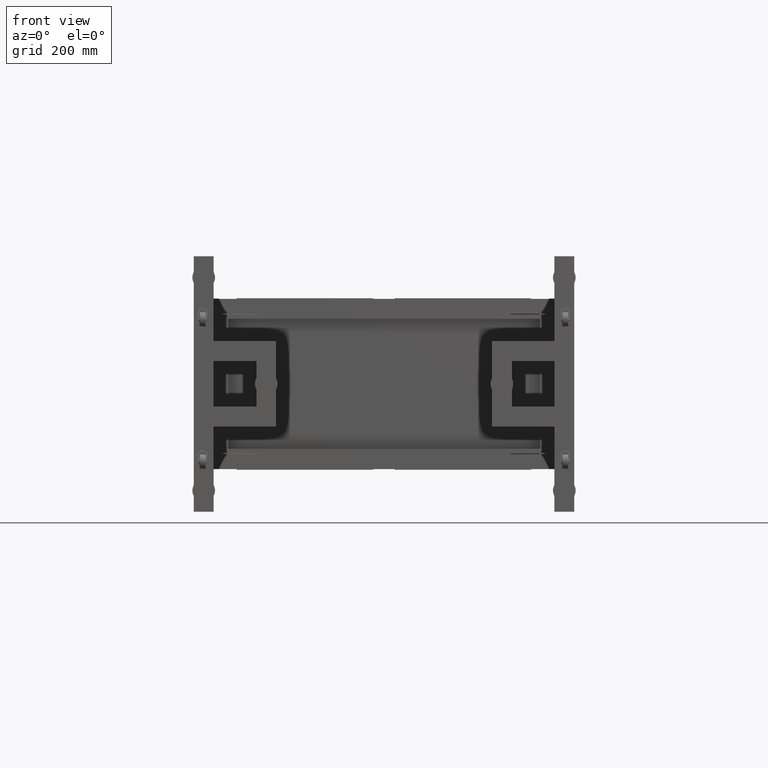
[diagram: clean part render]
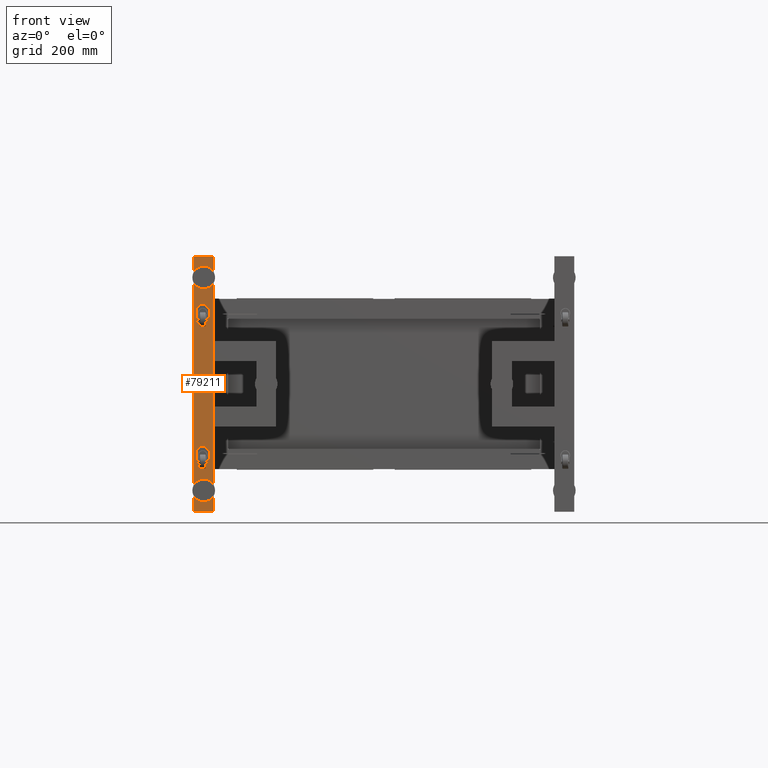
[diagram: same view with one face highlighted and labeled with its STEP entity id]
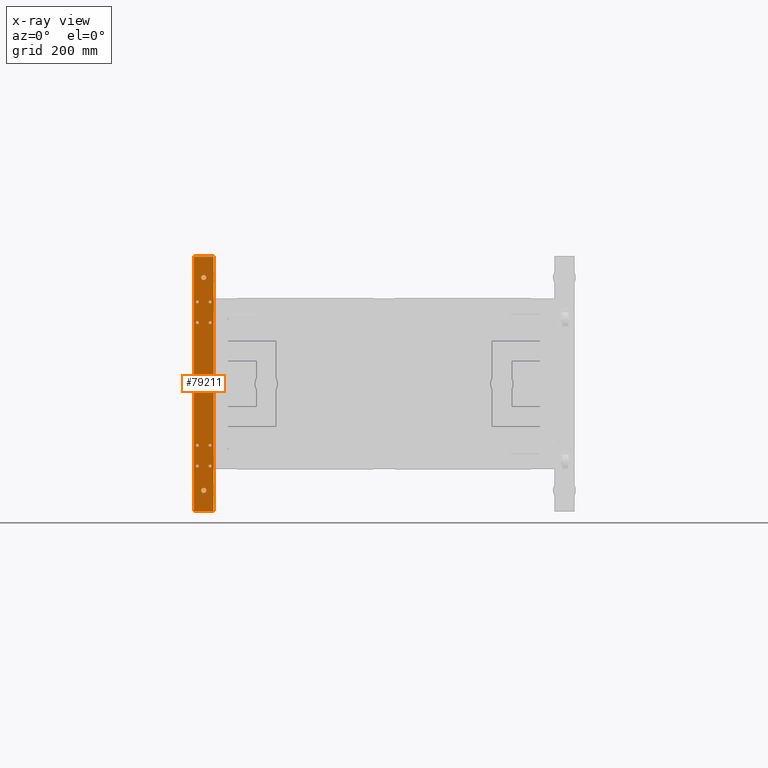
[diagram: x-ray of the same camera — body ghosted, the highlighted face saturated]
A machine part, front view. The second image highlights one B-rep face of the part: STEP entity #79211.
The next image is the same camera in x-ray: the body ghosted, the highlighted face saturated — about 0% of this face is hidden behind the body in this view.
In plain terms, the highlighted planar face has unit normal (0, -1, 0).
Its self-contained STEP definition (entity closure, byte-faithful):
#157 = ORIENTED_EDGE ( 'NONE', *, *, #74720, .F. ) ;
#371 = AXIS2_PLACEMENT_3D ( 'NONE', #2652, #28635, #33936 ) ;
#869 = CARTESIAN_POINT ( 'NONE',  ( -1303.172487437185055, -894.5589195979879378, -375.0000000000000000 ) ) ;
#1039 = EDGE_LOOP ( 'NONE', ( #66472, #48890 ) ) ;
#1186 = ORIENTED_EDGE ( 'NONE', *, *, #58621, .F. ) ;
#1431 = VERTEX_POINT ( 'NONE', #26949 ) ;
#1462 = EDGE_LOOP ( 'NONE', ( #38681, #31930 ) ) ;
#1534 = DIRECTION ( 'NONE',  ( 0.000000000000000000, 0.000000000000000000, -1.000000000000000000 ) ) ;
#1538 = DIRECTION ( 'NONE',  ( 0.000000000000000000, -1.000000000000000000, 0.000000000000000000 ) ) ;
#1677 = EDGE_CURVE ( 'NONE', #75824, #39439, #24745, .T. ) ;
#1810 = CIRCLE ( 'NONE', #57668, 5.000000000000004441 ) ;
#2161 = AXIS2_PLACEMENT_3D ( 'NONE', #61181, #30303, #48613 ) ;
#2340 = ORIENTED_EDGE ( 'NONE', *, *, #80062, .F. ) ;
#2652 = CARTESIAN_POINT ( 'NONE',  ( -1325.672487437185055, -894.5589195979879378, 215.9999999999999432 ) ) ;
#3416 = CARTESIAN_POINT ( 'NONE',  ( -1325.672487437185282, -894.5589195979879378, 288.9999999999999432 ) ) ;
#3755 = VECTOR ( 'NONE', #13297, 1000.000000000000000 ) ;
#4507 = CARTESIAN_POINT ( 'NONE',  ( -1280.672487437184827, -894.5589195979879378, 288.9999999999999432 ) ) ;
#4713 = FACE_BOUND ( 'NONE', #1462, .T. ) ;
#4926 = DIRECTION ( 'NONE',  ( 0.000000000000000000, 0.000000000000000000, 1.000000000000000000 ) ) ;
#4960 = DIRECTION ( 'NONE',  ( 0.000000000000000000, -1.000000000000000000, 0.000000000000000000 ) ) ;
#5424 = EDGE_LOOP ( 'NONE', ( #79623, #37013 ) ) ;
#6011 = EDGE_LOOP ( 'NONE', ( #24515, #75002 ) ) ;
#6938 = DIRECTION ( 'NONE',  ( 0.000000000000000000, -1.000000000000000000, 0.000000000000000000 ) ) ;
#6970 = DIRECTION ( 'NONE',  ( 0.000000000000000000, 0.000000000000000000, 1.000000000000000000 ) ) ;
#7252 = ORIENTED_EDGE ( 'NONE', *, *, #51128, .F. ) ;
#9313 = CIRCLE ( 'NONE', #31413, 9.000000000000007105 ) ;
#9516 = CARTESIAN_POINT ( 'NONE',  ( -1325.672487437185282, -894.5589195979879378, 293.9999999999999432 ) ) ;
#9852 = VERTEX_POINT ( 'NONE', #71468 ) ;
#12023 = FACE_BOUND ( 'NONE', #6011, .T. ) ;
#12415 = FACE_OUTER_BOUND ( 'NONE', #67964, .T. ) ;
#13257 = ORIENTED_EDGE ( 'NONE', *, *, #80318, .F. ) ;
#13297 = DIRECTION ( 'NONE',  ( 0.000000000000000000, 0.000000000000000000, 1.000000000000000000 ) ) ;
#13379 = DIRECTION ( 'NONE',  ( 0.000000000000000000, 0.000000000000000000, 1.000000000000000000 ) ) ;
#13592 = ORIENTED_EDGE ( 'NONE', *, *, #46682, .F. ) ;
#13597 = VERTEX_POINT ( 'NONE', #80136 ) ;
#13910 = AXIS2_PLACEMENT_3D ( 'NONE', #21625, #41106, #4926 ) ;
#14184 = DIRECTION ( 'NONE',  ( 0.000000000000000000, 0.000000000000000000, -1.000000000000000000 ) ) ;
#14320 = CARTESIAN_POINT ( 'NONE',  ( -1325.672487437185282, -894.5589195979879378, -289.0000000000000568 ) ) ;
#14800 = LINE ( 'NONE', #52599, #24631 ) ;
#15028 = EDGE_CURVE ( 'NONE', #39917, #77242, #73677, .T. ) ;
#15853 = CIRCLE ( 'NONE', #23605, 5.000000000000004441 ) ;
#15971 = AXIS2_PLACEMENT_3D ( 'NONE', #23941, #41413, #59709 ) ;
#16521 = FACE_BOUND ( 'NONE', #62607, .T. ) ;
#16533 = CARTESIAN_POINT ( 'NONE',  ( -1280.672487437184827, -894.5589195979879378, -216.0000000000000853 ) ) ;
#16695 = EDGE_CURVE ( 'NONE', #46367, #78654, #14800, .T. ) ;
#17139 = DIRECTION ( 'NONE',  ( 0.000000000000000000, 0.000000000000000000, -1.000000000000000000 ) ) ;
#17191 = EDGE_LOOP ( 'NONE', ( #2340, #13592 ) ) ;
#17784 = LINE ( 'NONE', #71838, #22775 ) ;
#18144 = ORIENTED_EDGE ( 'NONE', *, *, #62820, .F. ) ;
#18353 = AXIS2_PLACEMENT_3D ( 'NONE', #14320, #63884, #71574 ) ;
#20441 = ORIENTED_EDGE ( 'NONE', *, *, #74215, .F. ) ;
#20668 = CIRCLE ( 'NONE', #79001, 5.000000000000004441 ) ;
#20768 = CARTESIAN_POINT ( 'NONE',  ( -1325.672487437185282, -894.5589195979879378, 283.9999999999999432 ) ) ;
#21625 = CARTESIAN_POINT ( 'NONE',  ( -1280.672487437184827, -894.5589195979879378, -289.0000000000000568 ) ) ;
#21706 = DIRECTION ( 'NONE',  ( 0.000000000000000000, -1.000000000000000000, 0.000000000000000000 ) ) ;
#22775 = VECTOR ( 'NONE', #72230, 1000.000000000000000 ) ;
#22855 = DIRECTION ( 'NONE',  ( 0.000000000000000000, 0.000000000000000000, 1.000000000000000000 ) ) ;
#23201 = DIRECTION ( 'NONE',  ( 0.000000000000000000, -1.000000000000000000, 0.000000000000000000 ) ) ;
#23605 = AXIS2_PLACEMENT_3D ( 'NONE', #32873, #27582, #14184 ) ;
#23656 = CARTESIAN_POINT ( 'NONE',  ( -1325.672487437185282, -894.5589195979879378, -289.0000000000000568 ) ) ;
#23941 = CARTESIAN_POINT ( 'NONE',  ( -1280.672487437184827, -894.5589195979879378, 215.9999999999999432 ) ) ;
#24424 = DIRECTION ( 'NONE',  ( 0.000000000000000000, 0.000000000000000000, -1.000000000000000000 ) ) ;
#24515 = ORIENTED_EDGE ( 'NONE', *, *, #54792, .F. ) ;
#24631 = VECTOR ( 'NONE', #28590, 1000.000000000000000 ) ;
#24745 = CIRCLE ( 'NONE', #53345, 9.000000000000007105 ) ;
#25200 = CARTESIAN_POINT ( 'NONE',  ( -1280.672487437184827, -894.5589195979879378, -289.0000000000000568 ) ) ;
#25508 = CARTESIAN_POINT ( 'NONE',  ( -1338.172487437185055, -894.5589195979879378, -448.0000000000000568 ) ) ;
#26335 = DIRECTION ( 'NONE',  ( 0.000000000000000000, 0.000000000000000000, -1.000000000000000000 ) ) ;
#26949 = CARTESIAN_POINT ( 'NONE',  ( -1325.672487437185055, -894.5589195979879378, 210.9999999999999716 ) ) ;
#27242 = AXIS2_PLACEMENT_3D ( 'NONE', #71296, #29720, #17139 ) ;
#27580 = VERTEX_POINT ( 'NONE', #73123 ) ;
#27582 = DIRECTION ( 'NONE',  ( 0.000000000000000000, -1.000000000000000000, 0.000000000000000000 ) ) ;
#27810 = DIRECTION ( 'NONE',  ( 0.000000000000000000, 0.000000000000000000, 1.000000000000000000 ) ) ;
#28191 = DIRECTION ( 'NONE',  ( 0.000000000000000000, -1.000000000000000000, 0.000000000000000000 ) ) ;
#28371 = ORIENTED_EDGE ( 'NONE', *, *, #1677, .F. ) ;
#28590 = DIRECTION ( 'NONE',  ( 1.000000000000000000, 0.000000000000000000, 0.000000000000000000 ) ) ;
#28635 = DIRECTION ( 'NONE',  ( 0.000000000000000000, -1.000000000000000000, 0.000000000000000000 ) ) ;
#29450 = CIRCLE ( 'NONE', #13910, 5.000000000000004441 ) ;
#29556 = CARTESIAN_POINT ( 'NONE',  ( -1303.172487437185055, -894.5589195979879378, -366.0000000000000000 ) ) ;
#29720 = DIRECTION ( 'NONE',  ( 0.000000000000000000, -1.000000000000000000, 0.000000000000000000 ) ) ;
#29846 = VERTEX_POINT ( 'NONE', #9516 ) ;
#29937 = EDGE_CURVE ( 'NONE', #29846, #36482, #1810, .T. ) ;
#30303 = DIRECTION ( 'NONE',  ( 0.000000000000000000, -1.000000000000000000, 0.000000000000000000 ) ) ;
#30363 = DIRECTION ( 'NONE',  ( 0.000000000000000000, -1.000000000000000000, 0.000000000000000000 ) ) ;
#30548 = DIRECTION ( 'NONE',  ( 0.000000000000000000, 0.000000000000000000, 1.000000000000000000 ) ) ;
#31027 = VERTEX_POINT ( 'NONE', #69107 ) ;
#31333 = VERTEX_POINT ( 'NONE', #54834 ) ;
#31413 = AXIS2_PLACEMENT_3D ( 'NONE', #38219, #6938, #56514 ) ;
#31699 = CARTESIAN_POINT ( 'NONE',  ( -1325.672487437185282, -894.5589195979879378, -284.0000000000000568 ) ) ;
#31930 = ORIENTED_EDGE ( 'NONE', *, *, #29937, .F. ) ;
#32170 = AXIS2_PLACEMENT_3D ( 'NONE', #23656, #4960, #22855 ) ;
#32762 = VECTOR ( 'NONE', #67793, 1000.000000000000000 ) ;
#32873 = CARTESIAN_POINT ( 'NONE',  ( -1325.672487437185282, -894.5589195979879378, 288.9999999999999432 ) ) ;
#32950 = DIRECTION ( 'NONE',  ( 0.000000000000000000, -1.000000000000000000, 0.000000000000000000 ) ) ;
#33095 = VERTEX_POINT ( 'NONE', #54344 ) ;
#33936 = DIRECTION ( 'NONE',  ( 0.000000000000000000, 0.000000000000000000, -1.000000000000000000 ) ) ;
#34032 = CARTESIAN_POINT ( 'NONE',  ( -1303.172487437185055, -894.5589195979879378, 374.9999999999999432 ) ) ;
#34348 = AXIS2_PLACEMENT_3D ( 'NONE', #57491, #21706, #27810 ) ;
#35214 = DIRECTION ( 'NONE',  ( 0.000000000000000000, 0.000000000000000000, 1.000000000000000000 ) ) ;
#35451 = CIRCLE ( 'NONE', #15971, 5.000000000000004441 ) ;
#36482 = VERTEX_POINT ( 'NONE', #20768 ) ;
#36936 = EDGE_CURVE ( 'NONE', #36482, #29846, #15853, .T. ) ;
#37004 = CARTESIAN_POINT ( 'NONE',  ( -1338.172487437185055, -894.5589195979879378, -448.0000000000000568 ) ) ;
#37013 = ORIENTED_EDGE ( 'NONE', *, *, #46319, .F. ) ;
#37324 = CARTESIAN_POINT ( 'NONE',  ( -1338.172487437185055, -894.5589195979879378, 447.9999999999999432 ) ) ;
#37346 = EDGE_LOOP ( 'NONE', ( #50678, #60040 ) ) ;
#37381 = DIRECTION ( 'NONE',  ( 0.000000000000000000, -1.000000000000000000, 0.000000000000000000 ) ) ;
#37409 = DIRECTION ( 'NONE',  ( 0.000000000000000000, -1.000000000000000000, 0.000000000000000000 ) ) ;
#37457 = AXIS2_PLACEMENT_3D ( 'NONE', #34032, #39722, #1534 ) ;
#37615 = PLANE ( 'NONE',  #2161 ) ;
#38070 = CIRCLE ( 'NONE', #45902, 5.000000000000004441 ) ;
#38219 = CARTESIAN_POINT ( 'NONE',  ( -1303.172487437185055, -894.5589195979879378, -375.0000000000000000 ) ) ;
#38681 = ORIENTED_EDGE ( 'NONE', *, *, #36936, .F. ) ;
#38820 = VERTEX_POINT ( 'NONE', #71521 ) ;
#39151 = CARTESIAN_POINT ( 'NONE',  ( -1280.672487437184827, -894.5589195979879378, 293.9999999999999432 ) ) ;
#39439 = VERTEX_POINT ( 'NONE', #29556 ) ;
#39566 = VERTEX_POINT ( 'NONE', #79907 ) ;
#39722 = DIRECTION ( 'NONE',  ( 0.000000000000000000, -1.000000000000000000, 0.000000000000000000 ) ) ;
#39917 = VERTEX_POINT ( 'NONE', #44774 ) ;
#40147 = EDGE_LOOP ( 'NONE', ( #28371, #1186 ) ) ;
#40570 = AXIS2_PLACEMENT_3D ( 'NONE', #57206, #1538, #26335 ) ;
#40898 = FACE_BOUND ( 'NONE', #5424, .T. ) ;
#41106 = DIRECTION ( 'NONE',  ( 0.000000000000000000, -1.000000000000000000, 0.000000000000000000 ) ) ;
#41282 = FACE_BOUND ( 'NONE', #1039, .T. ) ;
#41413 = DIRECTION ( 'NONE',  ( 0.000000000000000000, -1.000000000000000000, 0.000000000000000000 ) ) ;
#41989 = CARTESIAN_POINT ( 'NONE',  ( -1303.172487437185055, -894.5589195979879378, 383.9999999999999432 ) ) ;
#42534 = ORIENTED_EDGE ( 'NONE', *, *, #16695, .T. ) ;
#42602 = CARTESIAN_POINT ( 'NONE',  ( -1338.172487437185055, -894.5589195979879378, 447.9999999999999432 ) ) ;
#42985 = ORIENTED_EDGE ( 'NONE', *, *, #65653, .T. ) ;
#43013 = LINE ( 'NONE', #42602, #32762 ) ;
#43794 = CIRCLE ( 'NONE', #62003, 5.000000000000004441 ) ;
#43997 = VERTEX_POINT ( 'NONE', #59705 ) ;
#44705 = ORIENTED_EDGE ( 'NONE', *, *, #48851, .F. ) ;
#44749 = CIRCLE ( 'NONE', #57729, 5.000000000000004441 ) ;
#44774 = CARTESIAN_POINT ( 'NONE',  ( -1325.672487437185282, -894.5589195979879378, -294.0000000000000568 ) ) ;
#45064 = AXIS2_PLACEMENT_3D ( 'NONE', #55305, #37409, #79653 ) ;
#45152 = CARTESIAN_POINT ( 'NONE',  ( -1280.672487437184827, -894.5589195979879378, 283.9999999999999432 ) ) ;
#45687 = DIRECTION ( 'NONE',  ( 0.000000000000000000, 0.000000000000000000, -1.000000000000000000 ) ) ;
#45902 = AXIS2_PLACEMENT_3D ( 'NONE', #4507, #23201, #24424 ) ;
#46319 = EDGE_CURVE ( 'NONE', #76261, #72055, #38070, .T. ) ;
#46367 = VERTEX_POINT ( 'NONE', #37004 ) ;
#46682 = EDGE_CURVE ( 'NONE', #27580, #62622, #49860, .T. ) ;
#47026 = FACE_BOUND ( 'NONE', #17191, .T. ) ;
#48613 = DIRECTION ( 'NONE',  ( 0.000000000000000000, 0.000000000000000000, -1.000000000000000000 ) ) ;
#48851 = EDGE_CURVE ( 'NONE', #31333, #13597, #52521, .T. ) ;
#48890 = ORIENTED_EDGE ( 'NONE', *, *, #58250, .F. ) ;
#49860 = CIRCLE ( 'NONE', #66695, 5.000000000000004441 ) ;
#50255 = CARTESIAN_POINT ( 'NONE',  ( -1303.172487437185055, -894.5589195979879378, -384.0000000000000000 ) ) ;
#50678 = ORIENTED_EDGE ( 'NONE', *, *, #68175, .F. ) ;
#51024 = CIRCLE ( 'NONE', #371, 5.000000000000004441 ) ;
#51128 = EDGE_CURVE ( 'NONE', #46367, #53716, #57576, .T. ) ;
#51703 = CARTESIAN_POINT ( 'NONE',  ( -1268.172487437184827, -894.5589195979879378, -448.0000000000000568 ) ) ;
#52521 = CIRCLE ( 'NONE', #34348, 5.000000000000004441 ) ;
#52599 = CARTESIAN_POINT ( 'NONE',  ( -1338.172487437185055, -894.5589195979879378, -448.0000000000000568 ) ) ;
#52934 = VERTEX_POINT ( 'NONE', #41989 ) ;
#53345 = AXIS2_PLACEMENT_3D ( 'NONE', #869, #32950, #6970 ) ;
#53716 = VERTEX_POINT ( 'NONE', #37324 ) ;
#54344 = CARTESIAN_POINT ( 'NONE',  ( -1303.172487437185055, -894.5589195979879378, 365.9999999999999432 ) ) ;
#54631 = EDGE_CURVE ( 'NONE', #52934, #33095, #62091, .T. ) ;
#54792 = EDGE_CURVE ( 'NONE', #33095, #52934, #60864, .T. ) ;
#54797 = EDGE_CURVE ( 'NONE', #38820, #65619, #20668, .T. ) ;
#54834 = CARTESIAN_POINT ( 'NONE',  ( -1325.672487437185055, -894.5589195979879378, -211.0000000000000853 ) ) ;
#55158 = DIRECTION ( 'NONE',  ( 0.000000000000000000, 0.000000000000000000, -1.000000000000000000 ) ) ;
#55194 = EDGE_CURVE ( 'NONE', #72055, #76261, #68713, .T. ) ;
#55305 = CARTESIAN_POINT ( 'NONE',  ( -1280.672487437184827, -894.5589195979879378, -216.0000000000000853 ) ) ;
#56514 = DIRECTION ( 'NONE',  ( 0.000000000000000000, 0.000000000000000000, 1.000000000000000000 ) ) ;
#57206 = CARTESIAN_POINT ( 'NONE',  ( -1280.672487437184827, -894.5589195979879378, 215.9999999999999432 ) ) ;
#57491 = CARTESIAN_POINT ( 'NONE',  ( -1325.672487437185055, -894.5589195979879378, -216.0000000000000853 ) ) ;
#57576 = LINE ( 'NONE', #25508, #3755 ) ;
#57668 = AXIS2_PLACEMENT_3D ( 'NONE', #3416, #28191, #45687 ) ;
#57729 = AXIS2_PLACEMENT_3D ( 'NONE', #60216, #66311, #30548 ) ;
#57994 = CIRCLE ( 'NONE', #45064, 5.000000000000004441 ) ;
#58250 = EDGE_CURVE ( 'NONE', #77242, #39917, #78018, .T. ) ;
#58621 = EDGE_CURVE ( 'NONE', #39439, #75824, #9313, .T. ) ;
#59705 = CARTESIAN_POINT ( 'NONE',  ( -1280.672487437184827, -894.5589195979879378, 220.9999999999999432 ) ) ;
#59709 = DIRECTION ( 'NONE',  ( 0.000000000000000000, 0.000000000000000000, -1.000000000000000000 ) ) ;
#59940 = EDGE_CURVE ( 'NONE', #39566, #43997, #35451, .T. ) ;
#60040 = ORIENTED_EDGE ( 'NONE', *, *, #54797, .F. ) ;
#60216 = CARTESIAN_POINT ( 'NONE',  ( -1325.672487437185055, -894.5589195979879378, -216.0000000000000853 ) ) ;
#60837 = CARTESIAN_POINT ( 'NONE',  ( -1325.672487437185055, -894.5589195979879378, 215.9999999999999432 ) ) ;
#60864 = CIRCLE ( 'NONE', #80350, 9.000000000000007105 ) ;
#61181 = CARTESIAN_POINT ( 'NONE',  ( -1338.172487437185055, -894.5589195979879378, -448.0000000000000568 ) ) ;
#62003 = AXIS2_PLACEMENT_3D ( 'NONE', #60837, #30363, #55158 ) ;
#62091 = CIRCLE ( 'NONE', #37457, 9.000000000000007105 ) ;
#62569 = ORIENTED_EDGE ( 'NONE', *, *, #59940, .F. ) ;
#62607 = EDGE_LOOP ( 'NONE', ( #62569, #20441 ) ) ;
#62622 = VERTEX_POINT ( 'NONE', #65800 ) ;
#62820 = EDGE_CURVE ( 'NONE', #53716, #31027, #43013, .T. ) ;
#63884 = DIRECTION ( 'NONE',  ( 0.000000000000000000, -1.000000000000000000, 0.000000000000000000 ) ) ;
#65207 = CIRCLE ( 'NONE', #40570, 5.000000000000004441 ) ;
#65619 = VERTEX_POINT ( 'NONE', #77932 ) ;
#65653 = EDGE_CURVE ( 'NONE', #78654, #31027, #17784, .T. ) ;
#65692 = DIRECTION ( 'NONE',  ( 0.000000000000000000, -1.000000000000000000, 0.000000000000000000 ) ) ;
#65800 = CARTESIAN_POINT ( 'NONE',  ( -1280.672487437184827, -894.5589195979879378, -294.0000000000000568 ) ) ;
#66086 = DIRECTION ( 'NONE',  ( 0.000000000000000000, -1.000000000000000000, 0.000000000000000000 ) ) ;
#66311 = DIRECTION ( 'NONE',  ( 0.000000000000000000, -1.000000000000000000, 0.000000000000000000 ) ) ;
#66472 = ORIENTED_EDGE ( 'NONE', *, *, #15028, .F. ) ;
#66695 = AXIS2_PLACEMENT_3D ( 'NONE', #25200, #37381, #13379 ) ;
#67793 = DIRECTION ( 'NONE',  ( 1.000000000000000000, 0.000000000000000000, 0.000000000000000000 ) ) ;
#67964 = EDGE_LOOP ( 'NONE', ( #18144, #7252, #42534, #42985 ) ) ;
#68175 = EDGE_CURVE ( 'NONE', #65619, #38820, #57994, .T. ) ;
#68713 = CIRCLE ( 'NONE', #27242, 5.000000000000004441 ) ;
#68886 = FACE_BOUND ( 'NONE', #70433, .T. ) ;
#69107 = CARTESIAN_POINT ( 'NONE',  ( -1268.172487437184827, -894.5589195979879378, 447.9999999999999432 ) ) ;
#70433 = EDGE_LOOP ( 'NONE', ( #157, #13257 ) ) ;
#71296 = CARTESIAN_POINT ( 'NONE',  ( -1280.672487437184827, -894.5589195979879378, 288.9999999999999432 ) ) ;
#71468 = CARTESIAN_POINT ( 'NONE',  ( -1325.672487437185055, -894.5589195979879378, 220.9999999999999432 ) ) ;
#71521 = CARTESIAN_POINT ( 'NONE',  ( -1280.672487437184827, -894.5589195979879378, -211.0000000000000853 ) ) ;
#71574 = DIRECTION ( 'NONE',  ( 0.000000000000000000, 0.000000000000000000, 1.000000000000000000 ) ) ;
#71772 = FACE_BOUND ( 'NONE', #37346, .T. ) ;
#71787 = CARTESIAN_POINT ( 'NONE',  ( -1303.172487437185055, -894.5589195979879378, 374.9999999999999432 ) ) ;
#71838 = CARTESIAN_POINT ( 'NONE',  ( -1268.172487437184827, -894.5589195979879378, -448.0000000000000568 ) ) ;
#72055 = VERTEX_POINT ( 'NONE', #45152 ) ;
#72162 = FACE_BOUND ( 'NONE', #40147, .T. ) ;
#72230 = DIRECTION ( 'NONE',  ( 0.000000000000000000, 0.000000000000000000, 1.000000000000000000 ) ) ;
#73123 = CARTESIAN_POINT ( 'NONE',  ( -1280.672487437184827, -894.5589195979879378, -284.0000000000000568 ) ) ;
#73677 = CIRCLE ( 'NONE', #32170, 5.000000000000004441 ) ;
#74215 = EDGE_CURVE ( 'NONE', #43997, #39566, #65207, .T. ) ;
#74571 = FACE_BOUND ( 'NONE', #77187, .T. ) ;
#74720 = EDGE_CURVE ( 'NONE', #1431, #9852, #51024, .T. ) ;
#75002 = ORIENTED_EDGE ( 'NONE', *, *, #54631, .F. ) ;
#75824 = VERTEX_POINT ( 'NONE', #50255 ) ;
#76261 = VERTEX_POINT ( 'NONE', #39151 ) ;
#76498 = EDGE_CURVE ( 'NONE', #13597, #31333, #44749, .T. ) ;
#77187 = EDGE_LOOP ( 'NONE', ( #78550, #44705 ) ) ;
#77242 = VERTEX_POINT ( 'NONE', #31699 ) ;
#77932 = CARTESIAN_POINT ( 'NONE',  ( -1280.672487437184827, -894.5589195979879378, -221.0000000000000853 ) ) ;
#78018 = CIRCLE ( 'NONE', #18353, 5.000000000000004441 ) ;
#78274 = DIRECTION ( 'NONE',  ( 0.000000000000000000, 0.000000000000000000, -1.000000000000000000 ) ) ;
#78550 = ORIENTED_EDGE ( 'NONE', *, *, #76498, .F. ) ;
#78654 = VERTEX_POINT ( 'NONE', #51703 ) ;
#79001 = AXIS2_PLACEMENT_3D ( 'NONE', #16533, #66086, #35214 ) ;
#79211 = ADVANCED_FACE ( 'NONE', ( #4713, #47026, #71772, #72162, #40898, #16521, #41282, #68886, #74571, #12023, #12415 ), #37615, .T. ) ;
#79623 = ORIENTED_EDGE ( 'NONE', *, *, #55194, .F. ) ;
#79653 = DIRECTION ( 'NONE',  ( 0.000000000000000000, 0.000000000000000000, 1.000000000000000000 ) ) ;
#79907 = CARTESIAN_POINT ( 'NONE',  ( -1280.672487437184827, -894.5589195979879378, 210.9999999999999716 ) ) ;
#80062 = EDGE_CURVE ( 'NONE', #62622, #27580, #29450, .T. ) ;
#80136 = CARTESIAN_POINT ( 'NONE',  ( -1325.672487437185055, -894.5589195979879378, -221.0000000000000853 ) ) ;
#80318 = EDGE_CURVE ( 'NONE', #9852, #1431, #43794, .T. ) ;
#80350 = AXIS2_PLACEMENT_3D ( 'NONE', #71787, #65692, #78274 ) ;